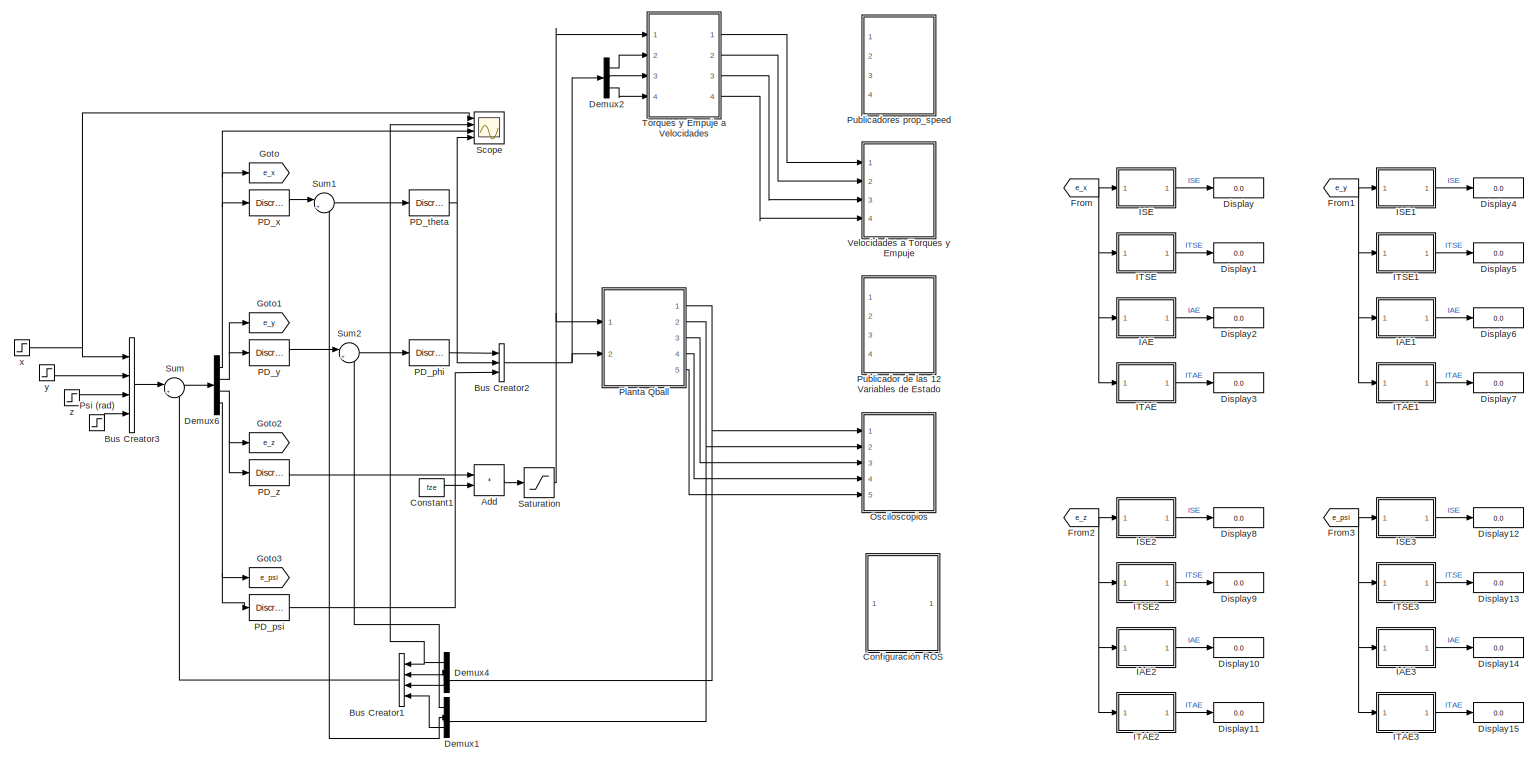
[diagram: root canvas - part 1/1, most of the canvas]
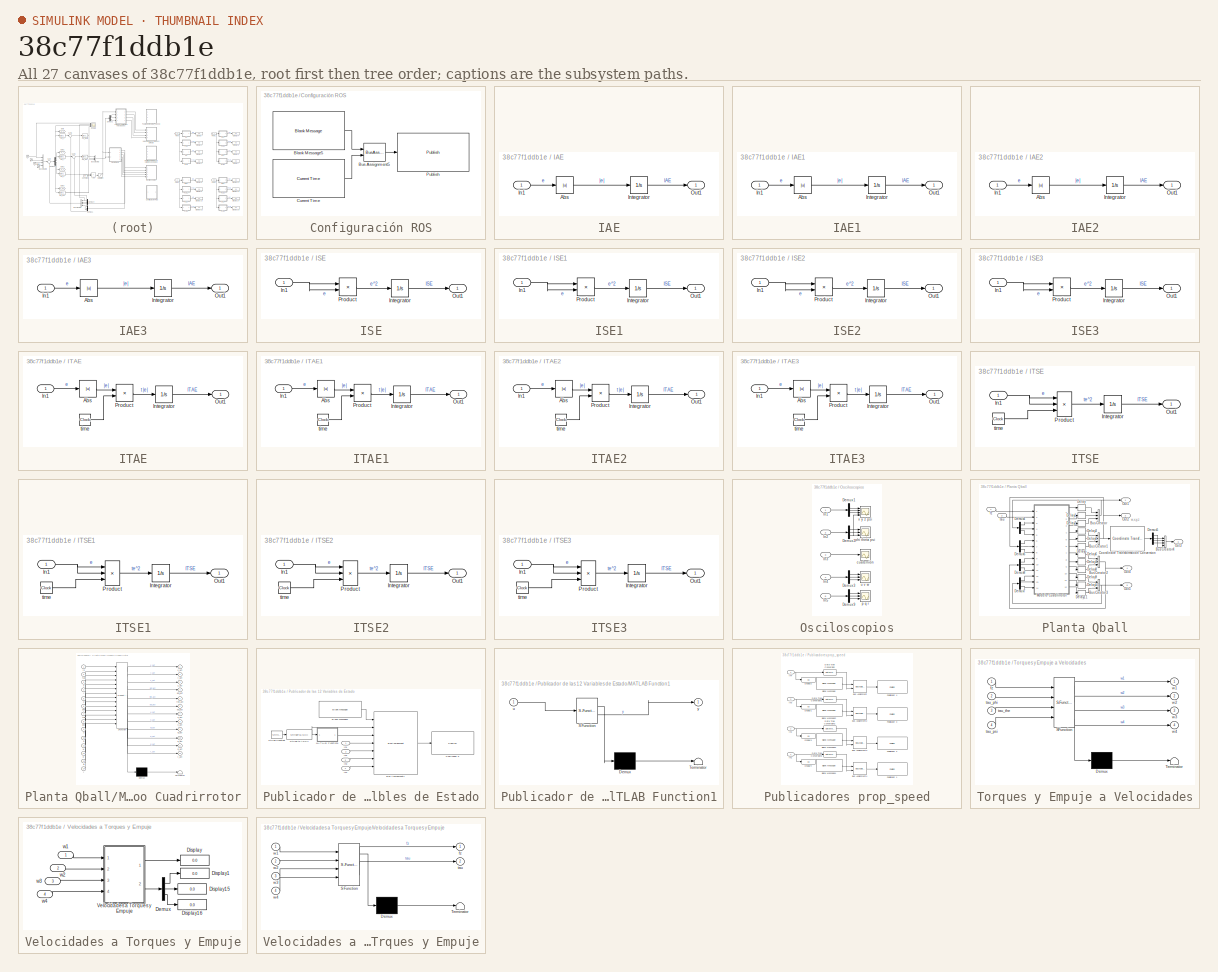
[diagram: thumbnail index - all 27 canvases of the model, root first then tree order]
MODEL slx_38c77f1ddb1e
KIND model
CONFIG AbsTol = auto
CONFIG EnableMultiTasking = off
CONFIG FixedStep = 0.01
CONFIG MaxStep = auto
CONFIG MinStep = auto
CONFIG RelTol = 1e-3
CONFIG SampleTimeConstraint = Unconstrained
CONFIG SolverName = FixedStepAuto
CONFIG StartTime = 0.0
CONFIG StopTime = 40
BLOCK [Sum] Add
  IconShape = rectangular
  Ports = [2, 1]
BLOCK [BusCreator] Bus Creator1
  DisplayOption = bar
  InheritFromInputs = on
  Inputs = 4
  Ports = [4, 1]
BLOCK [BusCreator] Bus Creator2
  DisplayOption = bar
  InheritFromInputs = on
  Inputs = 3
  Ports = [3, 1]
BLOCK [BusCreator] Bus Creator3
  DisplayOption = bar
  InheritFromInputs = on
  Inputs = 4
  Ports = [4, 1]
BLOCK [SubSystem] Configuración ROS
  Commented = on
  Ports = []
  RequestExecContextInheritance = off
BLOCK [Reference] Configuración ROS/Blank Message5  REF=robotlib/Blank Message
  Ports = [0, 1]
  SourceBlock = robotlib/Blank Message
  SourceProductBaseCode = RR
  SourceType = ROS Blank Message
BLOCK [BusAssignment] Configuración ROS/Bus Assignment5
  AssignedSignals = Clock_
  Ports = [2, 1]
BLOCK [Reference] Configuración ROS/Current Time  REF=robotlib/Current Time
  Ports = [0, 1]
  SourceBlock = robotlib/Current Time
  SourceProductBaseCode = RR
  SourceType = ros.slros.internal.block.CurrentTime
BLOCK [Reference] Configuración ROS/Publish  REF=robotlib/Publish
  Ports = [1]
  SourceBlock = robotlib/Publish
  SourceProductBaseCode = RR
  SourceType = ROS Publish
BLOCK [Constant] Constant1
  Value = fze
BLOCK [Demux] Demux1
  Outputs = 3
  Ports = [1, 3]
BLOCK [Demux] Demux2
  Outputs = 3
  Ports = [1, 3]
BLOCK [Demux] Demux4
  Outputs = 3
  Ports = [1, 3]
BLOCK [Demux] Demux6
  Ports = [1, 4]
BLOCK [Display] Display
  Decimation = 1
  Ports = [1]
BLOCK [Display] Display1
  Decimation = 1
  Ports = [1]
BLOCK [Display] Display10
  Decimation = 1
  Ports = [1]
BLOCK [Display] Display11
  Decimation = 1
  Ports = [1]
BLOCK [Display] Display12
  Decimation = 1
  Ports = [1]
BLOCK [Display] Display13
  Decimation = 1
  Ports = [1]
BLOCK [Display] Display14
  Decimation = 1
  Ports = [1]
BLOCK [Display] Display15
  Decimation = 1
  Ports = [1]
BLOCK [Display] Display2
  Decimation = 1
  Ports = [1]
BLOCK [Display] Display3
  Decimation = 1
  Ports = [1]
BLOCK [Display] Display4
  Decimation = 1
  Ports = [1]
BLOCK [Display] Display5
  Decimation = 1
  Ports = [1]
BLOCK [Display] Display6
  Decimation = 1
  Ports = [1]
BLOCK [Display] Display7
  Decimation = 1
  Ports = [1]
BLOCK [Display] Display8
  Decimation = 1
  Ports = [1]
BLOCK [Display] Display9
  Decimation = 1
  Ports = [1]
BLOCK [From] From
  GotoTag = e_x
BLOCK [From] From1
  GotoTag = e_y
BLOCK [From] From2
  GotoTag = e_z
BLOCK [From] From3
  GotoTag = e_psi
BLOCK [Goto] Goto
  GotoTag = e_x
BLOCK [Goto] Goto1
  GotoTag = e_y
BLOCK [Goto] Goto2
  GotoTag = e_z
BLOCK [Goto] Goto3
  GotoTag = e_psi
BLOCK [SubSystem] IAE
  Ports = [1, 1]
  RequestExecContextInheritance = off
BLOCK [Abs] IAE/Abs
  SaturateOnIntegerOverflow = off
BLOCK [Inport] IAE/In1
BLOCK [Integrator] IAE/Integrator
  Ports = [1, 1]
BLOCK [Outport] IAE/Out1
BLOCK [SubSystem] IAE1
  Ports = [1, 1]
  RequestExecContextInheritance = off
BLOCK [Abs] IAE1/Abs
  SaturateOnIntegerOverflow = off
BLOCK [Inport] IAE1/In1
BLOCK [Integrator] IAE1/Integrator
  Ports = [1, 1]
BLOCK [Outport] IAE1/Out1
BLOCK [SubSystem] IAE2
  Ports = [1, 1]
  RequestExecContextInheritance = off
BLOCK [Abs] IAE2/Abs
  SaturateOnIntegerOverflow = off
BLOCK [Inport] IAE2/In1
BLOCK [Integrator] IAE2/Integrator
  Ports = [1, 1]
BLOCK [Outport] IAE2/Out1
BLOCK [SubSystem] IAE3
  Ports = [1, 1]
  RequestExecContextInheritance = off
BLOCK [Abs] IAE3/Abs
  SaturateOnIntegerOverflow = off
BLOCK [Inport] IAE3/In1
BLOCK [Integrator] IAE3/Integrator
  Ports = [1, 1]
BLOCK [Outport] IAE3/Out1
BLOCK [SubSystem] ISE
  Ports = [1, 1]
  RequestExecContextInheritance = off
BLOCK [Inport] ISE/In1
BLOCK [Integrator] ISE/Integrator
  Ports = [1, 1]
BLOCK [Outport] ISE/Out1
BLOCK [Product] ISE/Product
  Ports = [2, 1]
BLOCK [SubSystem] ISE1
  Ports = [1, 1]
  RequestExecContextInheritance = off
BLOCK [Inport] ISE1/In1
BLOCK [Integrator] ISE1/Integrator
  Ports = [1, 1]
BLOCK [Outport] ISE1/Out1
BLOCK [Product] ISE1/Product
  Ports = [2, 1]
BLOCK [SubSystem] ISE2
  Ports = [1, 1]
  RequestExecContextInheritance = off
BLOCK [Inport] ISE2/In1
BLOCK [Integrator] ISE2/Integrator
  Ports = [1, 1]
BLOCK [Outport] ISE2/Out1
BLOCK [Product] ISE2/Product
  Ports = [2, 1]
BLOCK [SubSystem] ISE3
  Ports = [1, 1]
  RequestExecContextInheritance = off
BLOCK [Inport] ISE3/In1
BLOCK [Integrator] ISE3/Integrator
  Ports = [1, 1]
BLOCK [Outport] ISE3/Out1
BLOCK [Product] ISE3/Product
  Ports = [2, 1]
BLOCK [SubSystem] ITAE
  Ports = [1, 1]
  RequestExecContextInheritance = off
BLOCK [Abs] ITAE/Abs
  SaturateOnIntegerOverflow = off
BLOCK [Inport] ITAE/In1
BLOCK [Integrator] ITAE/Integrator
  Ports = [1, 1]
BLOCK [Outport] ITAE/Out1
BLOCK [Product] ITAE/Product
  Ports = [2, 1]
BLOCK [Clock] ITAE/time
BLOCK [SubSystem] ITAE1
  Ports = [1, 1]
  RequestExecContextInheritance = off
BLOCK [Abs] ITAE1/Abs
  SaturateOnIntegerOverflow = off
BLOCK [Inport] ITAE1/In1
BLOCK [Integrator] ITAE1/Integrator
  Ports = [1, 1]
BLOCK [Outport] ITAE1/Out1
BLOCK [Product] ITAE1/Product
  Ports = [2, 1]
BLOCK [Clock] ITAE1/time
BLOCK [SubSystem] ITAE2
  Ports = [1, 1]
  RequestExecContextInheritance = off
BLOCK [Abs] ITAE2/Abs
  SaturateOnIntegerOverflow = off
BLOCK [Inport] ITAE2/In1
BLOCK [Integrator] ITAE2/Integrator
  Ports = [1, 1]
BLOCK [Outport] ITAE2/Out1
BLOCK [Product] ITAE2/Product
  Ports = [2, 1]
BLOCK [Clock] ITAE2/time
BLOCK [SubSystem] ITAE3
  Ports = [1, 1]
  RequestExecContextInheritance = off
BLOCK [Abs] ITAE3/Abs
  SaturateOnIntegerOverflow = off
BLOCK [Inport] ITAE3/In1
BLOCK [Integrator] ITAE3/Integrator
  Ports = [1, 1]
BLOCK [Outport] ITAE3/Out1
BLOCK [Product] ITAE3/Product
  Ports = [2, 1]
BLOCK [Clock] ITAE3/time
BLOCK [SubSystem] ITSE
  Ports = [1, 1]
  RequestExecContextInheritance = off
BLOCK [Inport] ITSE/In1
BLOCK [Integrator] ITSE/Integrator
  Ports = [1, 1]
BLOCK [Outport] ITSE/Out1
BLOCK [Product] ITSE/Product
  Inputs = 3
  Ports = [3, 1]
BLOCK [Clock] ITSE/time
BLOCK [SubSystem] ITSE1
  Ports = [1, 1]
  RequestExecContextInheritance = off
BLOCK [Inport] ITSE1/In1
BLOCK [Integrator] ITSE1/Integrator
  Ports = [1, 1]
BLOCK [Outport] ITSE1/Out1
BLOCK [Product] ITSE1/Product
  Inputs = 3
  Ports = [3, 1]
BLOCK [Clock] ITSE1/time
BLOCK [SubSystem] ITSE2
  Ports = [1, 1]
  RequestExecContextInheritance = off
BLOCK [Inport] ITSE2/In1
BLOCK [Integrator] ITSE2/Integrator
  Ports = [1, 1]
BLOCK [Outport] ITSE2/Out1
BLOCK [Product] ITSE2/Product
  Inputs = 3
  Ports = [3, 1]
BLOCK [Clock] ITSE2/time
BLOCK [SubSystem] ITSE3
  Ports = [1, 1]
  RequestExecContextInheritance = off
BLOCK [Inport] ITSE3/In1
BLOCK [Integrator] ITSE3/Integrator
  Ports = [1, 1]
BLOCK [Outport] ITSE3/Out1
BLOCK [Product] ITSE3/Product
  Inputs = 3
  Ports = [3, 1]
BLOCK [Clock] ITSE3/time
BLOCK [SubSystem] Osciloscopios
  Ports = [5]
  RequestExecContextInheritance = off
BLOCK [Demux] Osciloscopios/Demux1
  Outputs = 3
  Ports = [1, 3]
BLOCK [Demux] Osciloscopios/Demux2
  Outputs = 3
  Ports = [1, 3]
BLOCK [Demux] Osciloscopios/Demux3
  Outputs = 3
  Ports = [1, 3]
BLOCK [Demux] Osciloscopios/Demux9
  Outputs = 3
  Ports = [1, 3]
BLOCK [Inport] Osciloscopios/In1
BLOCK [Inport] Osciloscopios/In2
  Port = 2
BLOCK [Inport] Osciloscopios/In3
  Port = 3
BLOCK [Inport] Osciloscopios/In4
  Port = 4
BLOCK [Inport] Osciloscopios/In5
  Port = 5
BLOCK [Scope] Osciloscopios/cuaternión
  Floating = off
  NumInputPorts = 1
  Ports = [1]
  ScopeSpecificationString = Simulink.scopes.TimeScopeBlockCfg('CurrentConfiguration', extmgr.ConfigurationSet(extmgr.Configuration('Core','General UI',true),extmgr.Configuration('Core','Source UI',true),extmgr.Configuration('Sources','WiredSimulink',true),extmgr.Configuration('Visuals','Time Domain',true,'SerializedDisplays',{struct('MinYLimReal','-0.98505','MaxYLimReal','1.03802','YLabelReal','','MinYLimMag','0.00000','MaxY...<+2075ch>
BLOCK [Scope] Osciloscopios/p q r
  Floating = off
  NumInputPorts = 3
  Ports = [3]
  ScopeSpecificationString = Simulink.scopes.TimeScopeBlockCfg('CurrentConfiguration', extmgr.ConfigurationSet(extmgr.Configuration('Core','General UI',true),extmgr.Configuration('Core','Source UI',true),extmgr.Configuration('Sources','WiredSimulink',true,'DataLoggingVariableName','ScopeData4'),extmgr.Configuration('Visuals','Time Domain',true,'SerializedDisplays',{struct('MinYLimReal','-6.36129','MaxYLimReal','6.36129','YLab...<+2088ch>
BLOCK [Scope] Osciloscopios/phi theta psi
  Floating = off
  NumInputPorts = 3
  Ports = [3]
  ScopeSpecificationString = Simulink.scopes.TimeScopeBlockCfg('CurrentConfiguration', extmgr.ConfigurationSet(extmgr.Configuration('Core','General UI',true),extmgr.Configuration('Core','Source UI',true),extmgr.Configuration('Sources','WiredSimulink',true,'DataLoggingVariableName','ScopeData2'),extmgr.Configuration('Visuals','Time Domain',true,'SerializedDisplays',{struct('MinYLimReal','-0.01428','MaxYLimReal','0.12852','YLab...<+1785ch>
BLOCK [Scope] Osciloscopios/u v w
  Floating = off
  NumInputPorts = 3
  Ports = [3]
  ScopeSpecificationString = Simulink.scopes.TimeScopeBlockCfg('CurrentConfiguration', extmgr.ConfigurationSet(extmgr.Configuration('Core','General UI',true),extmgr.Configuration('Core','Source UI',true),extmgr.Configuration('Sources','WiredSimulink',true,'DataLoggingVariableName','ScopeData3'),extmgr.Configuration('Visuals','Time Domain',true,'SerializedDisplays',{struct('MinYLimReal','-0.24162','MaxYLimReal','0.74583','YLab...<+2087ch>
BLOCK [Scope] Osciloscopios/x y z psi
  Floating = off
  NumInputPorts = 4
  Ports = [4]
  ScopeSpecificationString = Simulink.scopes.TimeScopeBlockCfg('CurrentConfiguration', extmgr.ConfigurationSet(extmgr.Configuration('Core','General UI',true,'FigureColor',[1 1 1]),extmgr.Configuration('Core','Source UI',true),extmgr.Configuration('Sources','WiredSimulink',true,'DataLoggingVariableName','ScopeData1'),extmgr.Configuration('Visuals','Time Domain',true,'TimeAxisLabels','All','SerializedDisplays',{struct('MinYLimR...<+2335ch>
BLOCK [DiscreteTransferFcn] PD_phi
  Denominator = [1 0]
  InputPortMap = u0
  Numerator = 3.8694*[1 -0.9966]
  Ports = [1, 1]
  SampleTime = T
BLOCK [DiscreteTransferFcn] PD_psi
  Denominator = [1 0]
  InputPortMap = u0
  Numerator = -5.1591*[1 -0.9966]
  Ports = [1, 1]
  SampleTime = T
BLOCK [DiscreteTransferFcn] PD_theta
  Denominator = [1 0]
  InputPortMap = u0
  Numerator = -3.8694*[1 -0.9966]
  Ports = [1, 1]
  SampleTime = T
BLOCK [DiscreteTransferFcn] PD_x
  Denominator = [1 0]
  InputPortMap = u0
  Numerator = -13.152*[1 -0.9966]
  Ports = [1, 1]
  SampleTime = T
BLOCK [DiscreteTransferFcn] PD_y
  Denominator = [1 0]
  InputPortMap = u0
  Numerator = 13.152*[1 -0.9966]
  Ports = [1, 1]
  SampleTime = T
BLOCK [DiscreteTransferFcn] PD_z
  Denominator = [1 0]
  InputPortMap = u0
  Numerator = -230.87*[1 -0.9966]
  Ports = [1, 1]
  SampleTime = T
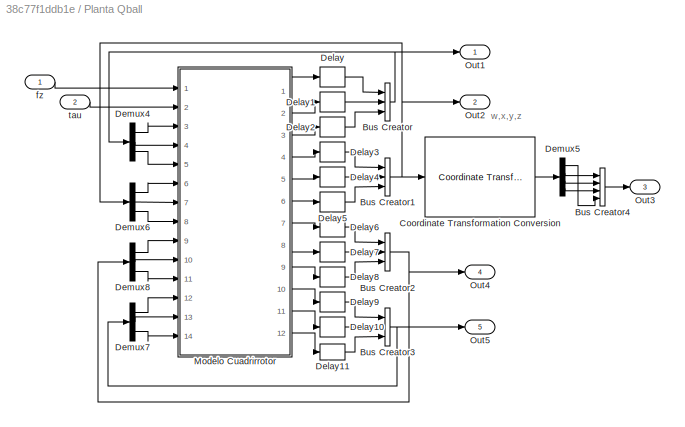
BLOCK [SubSystem] Planta Qball
  Ports = [2, 5]
  RequestExecContextInheritance = off
BLOCK [BusCreator] Planta Qball/Bus Creator
  DisplayOption = bar
  InheritFromInputs = on
  Inputs = 3
  Ports = [3, 1]
BLOCK [BusCreator] Planta Qball/Bus Creator1
  DisplayOption = bar
  InheritFromInputs = on
  Inputs = 3
  Ports = [3, 1]
BLOCK [BusCreator] Planta Qball/Bus Creator2
  DisplayOption = bar
  InheritFromInputs = on
  Inputs = 3
  Ports = [3, 1]
BLOCK [BusCreator] Planta Qball/Bus Creator3
  DisplayOption = bar
  InheritFromInputs = on
  Inputs = 3
  Ports = [3, 1]
BLOCK [BusCreator] Planta Qball/Bus Creator4
  DisplayOption = bar
  InheritFromInputs = on
  Inputs = 4
  Ports = [4, 1]
BLOCK [Reference] Planta Qball/Coordinate Transformation Conversion  REF=robotcorelib/Coordinate Transformation Conversion
  Ports = [1, 1]
  SourceBlock = robotcorelib/Coordinate Transformation Conversion
  SourceProductBaseCode = NV,RO,RR,UV
  SourceType = robotics.slcore.internal.block.CoordinateTransformationConversion
BLOCK [Delay] Planta Qball/Delay
  DelayLength = 1
  InputPortMap = u0
  Ports = [1, 1]
  SampleTime = T
BLOCK [Delay] Planta Qball/Delay1
  DelayLength = 1
  InputPortMap = u0
  Ports = [1, 1]
  SampleTime = T
BLOCK [Delay] Planta Qball/Delay10
  DelayLength = 1
  InputPortMap = u0
  Ports = [1, 1]
  SampleTime = T
BLOCK [Delay] Planta Qball/Delay11
  DelayLength = 1
  InputPortMap = u0
  Ports = [1, 1]
  SampleTime = T
BLOCK [Delay] Planta Qball/Delay2
  DelayLength = 1
  InputPortMap = u0
  Ports = [1, 1]
  SampleTime = T
BLOCK [Delay] Planta Qball/Delay3
  DelayLength = 1
  InputPortMap = u0
  Ports = [1, 1]
  SampleTime = T
BLOCK [Delay] Planta Qball/Delay4
  DelayLength = 1
  InputPortMap = u0
  Ports = [1, 1]
  SampleTime = T
BLOCK [Delay] Planta Qball/Delay5
  DelayLength = 1
  InputPortMap = u0
  Ports = [1, 1]
  SampleTime = T
BLOCK [Delay] Planta Qball/Delay6
  DelayLength = 1
  InputPortMap = u0
  Ports = [1, 1]
  SampleTime = T
BLOCK [Delay] Planta Qball/Delay7
  DelayLength = 1
  InputPortMap = u0
  Ports = [1, 1]
  SampleTime = T
BLOCK [Delay] Planta Qball/Delay8
  DelayLength = 1
  InputPortMap = u0
  Ports = [1, 1]
  SampleTime = T
BLOCK [Delay] Planta Qball/Delay9
  DelayLength = 1
  InputPortMap = u0
  Ports = [1, 1]
  SampleTime = T
BLOCK [Demux] Planta Qball/Demux4
  Outputs = 3
  Ports = [1, 3]
BLOCK [Demux] Planta Qball/Demux5
  Ports = [1, 4]
BLOCK [Demux] Planta Qball/Demux6
  Outputs = 3
  Ports = [1, 3]
BLOCK [Demux] Planta Qball/Demux7
  Outputs = 3
  Ports = [1, 3]
BLOCK [Demux] Planta Qball/Demux8
  Outputs = 3
  Ports = [1, 3]
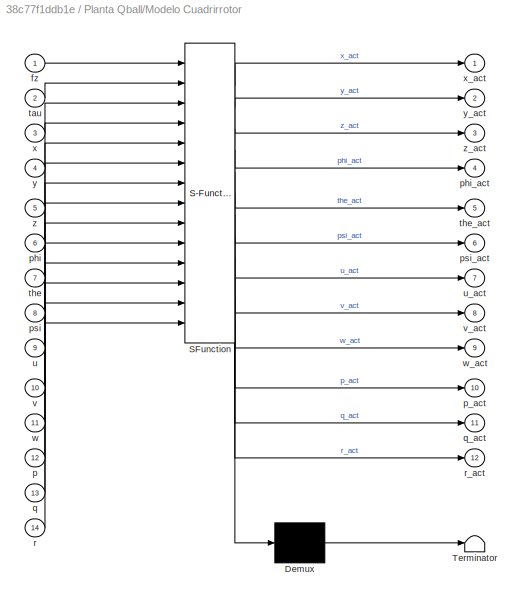
BLOCK [SubSystem] Planta Qball/Modelo Cuadrirrotor
  ErrorFcn = Stateflow.Translate.translate
  PermitHierarchicalResolution = ExplicitOnly
  Ports = [14, 12]
  RequestExecContextInheritance = off
  SFBlockType = MATLAB Function
  TreatAsAtomicUnit = on
BLOCK [Demux] Planta Qball/Modelo Cuadrirrotor/ Demux 
  Outputs = 1
  Ports = [1, 1]
BLOCK [S-Function] Planta Qball/Modelo Cuadrirrotor/ SFunction 
  EnableBusSupport = on
  FunctionName = sf_sfun
  PortCounts = [14 13]
  Ports = [14, 13]
  SFcnIsStateOwnerBlock = off
  SFunctionDeploymentMode = off
  Tag = Stateflow S-Function 3
BLOCK [Terminator] Planta Qball/Modelo Cuadrirrotor/ Terminator 
BLOCK [Inport] Planta Qball/Modelo Cuadrirrotor/fz
BLOCK [Inport] Planta Qball/Modelo Cuadrirrotor/p
  Port = 12
BLOCK [Outport] Planta Qball/Modelo Cuadrirrotor/p_act
  Port = 10
BLOCK [Inport] Planta Qball/Modelo Cuadrirrotor/phi
  Port = 6
BLOCK [Outport] Planta Qball/Modelo Cuadrirrotor/phi_act
  Port = 4
BLOCK [Inport] Planta Qball/Modelo Cuadrirrotor/psi
  Port = 8
BLOCK [Outport] Planta Qball/Modelo Cuadrirrotor/psi_act
  Port = 6
BLOCK [Inport] Planta Qball/Modelo Cuadrirrotor/q
  Port = 13
BLOCK [Outport] Planta Qball/Modelo Cuadrirrotor/q_act
  Port = 11
BLOCK [Inport] Planta Qball/Modelo Cuadrirrotor/r
  Port = 14
BLOCK [Outport] Planta Qball/Modelo Cuadrirrotor/r_act
  Port = 12
BLOCK [Inport] Planta Qball/Modelo Cuadrirrotor/tau
  Port = 2
BLOCK [Inport] Planta Qball/Modelo Cuadrirrotor/the
  Port = 7
BLOCK [Outport] Planta Qball/Modelo Cuadrirrotor/the_act
  Port = 5
BLOCK [Inport] Planta Qball/Modelo Cuadrirrotor/u
  Port = 9
BLOCK [Outport] Planta Qball/Modelo Cuadrirrotor/u_act
  Port = 7
BLOCK [Inport] Planta Qball/Modelo Cuadrirrotor/v
  Port = 10
BLOCK [Outport] Planta Qball/Modelo Cuadrirrotor/v_act
  Port = 8
BLOCK [Inport] Planta Qball/Modelo Cuadrirrotor/w
  Port = 11
BLOCK [Outport] Planta Qball/Modelo Cuadrirrotor/w_act
  Port = 9
BLOCK [Inport] Planta Qball/Modelo Cuadrirrotor/x
  Port = 3
BLOCK [Outport] Planta Qball/Modelo Cuadrirrotor/x_act
BLOCK [Inport] Planta Qball/Modelo Cuadrirrotor/y
  Port = 4
BLOCK [Outport] Planta Qball/Modelo Cuadrirrotor/y_act
  Port = 2
  VectorParamsAs1DForOutWhenUnconnected = off
BLOCK [Inport] Planta Qball/Modelo Cuadrirrotor/z
  Port = 5
BLOCK [Outport] Planta Qball/Modelo Cuadrirrotor/z_act
  Port = 3
BLOCK [Outport] Planta Qball/Out1
  PortDimensions = 3
BLOCK [Outport] Planta Qball/Out2
  Port = 2
  PortDimensions = 3
BLOCK [Outport] Planta Qball/Out3
  Port = 3
  PortDimensions = 4
BLOCK [Outport] Planta Qball/Out4
  Port = 4
  PortDimensions = 3
BLOCK [Outport] Planta Qball/Out5
  Port = 5
  PortDimensions = 3
BLOCK [Inport] Planta Qball/fz
BLOCK [Inport] Planta Qball/tau
  Port = 2
BLOCK [Step] Psi (rad)
  After = 0.1
  SampleTime = 0
  Time = 25
BLOCK [SubSystem] Publicador de las 12 Variables de Estado
  Commented = on
  Ports = [4]
  RequestExecContextInheritance = off
BLOCK [Reference] Publicador de las 12 Variables de Estado/Blank Message1  REF=robotlib/Blank Message
  Ports = [0, 1]
  SourceBlock = robotlib/Blank Message
  SourceProductBaseCode = RR
  SourceType = ROS Blank Message
BLOCK [BusAssignment] Publicador de las 12 Variables de Estado/Bus Assignment1
  AssignedSignals = ModelName,ReferenceFrame,Pose.Position,Pose.Orientation,Twist.Linear,Twist.Angular
  Ports = [7, 1]
BLOCK [Inport] Publicador de las 12 Variables de Estado/In1
BLOCK [Inport] Publicador de las 12 Variables de Estado/In2
  Port = 2
BLOCK [Inport] Publicador de las 12 Variables de Estado/In3
  Port = 3
BLOCK [Inport] Publicador de las 12 Variables de Estado/In4
  Port = 4
BLOCK [SubSystem] Publicador de las 12 Variables de Estado/MATLAB Function1
  ErrorFcn = Stateflow.Translate.translate
  PermitHierarchicalResolution = ExplicitOnly
  Ports = [1, 1]
  RequestExecContextInheritance = off
  SFBlockType = MATLAB Function
  TreatAsAtomicUnit = on
BLOCK [Demux] Publicador de las 12 Variables de Estado/MATLAB Function1/ Demux 
  Outputs = 1
  Ports = [1, 1]
BLOCK [S-Function] Publicador de las 12 Variables de Estado/MATLAB Function1/ SFunction 
  EnableBusSupport = on
  FunctionName = sf_sfun
  PortCounts = [1 2]
  Ports = [1, 2]
  SFcnIsStateOwnerBlock = off
  SFunctionDeploymentMode = off
  Tag = Stateflow S-Function 5
BLOCK [Terminator] Publicador de las 12 Variables de Estado/MATLAB Function1/ Terminator 
BLOCK [Inport] Publicador de las 12 Variables de Estado/MATLAB Function1/u
BLOCK [Outport] Publicador de las 12 Variables de Estado/MATLAB Function1/y
BLOCK [Reference] Publicador de las 12 Variables de Estado/Publicador 5  REF=robotlib/Publish
  Ports = [1]
  SourceBlock = robotlib/Publish
  SourceProductBaseCode = RR
  SourceType = ROS Publish
BLOCK [StringConstant] Publicador de las 12 Variables de Estado/String Constant
  String = "qball"
BLOCK [StringToASCII] Publicador de las 12 Variables de Estado/String to ASCII
  OutputVectorSize = 128
BLOCK [SubSystem] Publicadores prop_speed
  Commented = on
  Ports = [4]
  RequestExecContextInheritance = off
BLOCK [Reference] Publicadores prop_speed/Blank Message  REF=robotlib/Blank Message
  Ports = [0, 1]
  SourceBlock = robotlib/Blank Message
  SourceProductBaseCode = RR
  SourceType = ROS Blank Message
BLOCK [Reference] Publicadores prop_speed/Blank Message2  REF=robotlib/Blank Message
  Ports = [0, 1]
  SourceBlock = robotlib/Blank Message
  SourceProductBaseCode = RR
  SourceType = ROS Blank Message
BLOCK [Reference] Publicadores prop_speed/Blank Message3  REF=robotlib/Blank Message
  Ports = [0, 1]
  SourceBlock = robotlib/Blank Message
  SourceProductBaseCode = RR
  SourceType = ROS Blank Message
BLOCK [Reference] Publicadores prop_speed/Blank Message4  REF=robotlib/Blank Message
  Ports = [0, 1]
  SourceBlock = robotlib/Blank Message
  SourceProductBaseCode = RR
  SourceType = ROS Blank Message
BLOCK [BusAssignment] Publicadores prop_speed/Bus Assignment
  AssignedSignals = Data
  Ports = [2, 1]
BLOCK [BusAssignment] Publicadores prop_speed/Bus Assignment2
  AssignedSignals = Data
  Ports = [2, 1]
BLOCK [BusAssignment] Publicadores prop_speed/Bus Assignment3
  AssignedSignals = Data
  Ports = [2, 1]
BLOCK [BusAssignment] Publicadores prop_speed/Bus Assignment4
  AssignedSignals = Data
  Ports = [2, 1]
BLOCK [DataTypeConversion] Publicadores prop_speed/Data Type Conversion
  OutDataTypeStr = single
  RndMeth = Floor
  SaturateOnIntegerOverflow = off
BLOCK [DataTypeConversion] Publicadores prop_speed/Data Type Conversion1
  NameLocation = top
  OutDataTypeStr = single
  RndMeth = Floor
  SaturateOnIntegerOverflow = off
BLOCK [DataTypeConversion] Publicadores prop_speed/Data Type Conversion2
  OutDataTypeStr = single
  RndMeth = Floor
  SaturateOnIntegerOverflow = off
BLOCK [DataTypeConversion] Publicadores prop_speed/Data Type Conversion3
  OutDataTypeStr = single
  RndMeth = Floor
  SaturateOnIntegerOverflow = off
BLOCK [Display] Publicadores prop_speed/Display1
  Decimation = 1
  Ports = [1]
BLOCK [Display] Publicadores prop_speed/Display2
  Decimation = 1
  Ports = [1]
BLOCK [Display] Publicadores prop_speed/Display3
  Decimation = 1
  Ports = [1]
BLOCK [Display] Publicadores prop_speed/Display4
  Decimation = 1
  Ports = [1]
BLOCK [Inport] Publicadores prop_speed/In1
BLOCK [Inport] Publicadores prop_speed/In2
  Port = 2
BLOCK [Inport] Publicadores prop_speed/In3
  Port = 3
BLOCK [Inport] Publicadores prop_speed/In4
  Port = 4
BLOCK [Reference] Publicadores prop_speed/Publicador 1  REF=robotlib/Publish
  Ports = [1]
  SourceBlock = robotlib/Publish
  SourceProductBaseCode = RR
  SourceType = ROS Publish
BLOCK [Reference] Publicadores prop_speed/Publicador 2  REF=robotlib/Publish
  Ports = [1]
  SourceBlock = robotlib/Publish
  SourceProductBaseCode = RR
  SourceType = ROS Publish
BLOCK [Reference] Publicadores prop_speed/Publicador 3  REF=robotlib/Publish
  Ports = [1]
  SourceBlock = robotlib/Publish
  SourceProductBaseCode = RR
  SourceType = ROS Publish
BLOCK [Reference] Publicadores prop_speed/Publicador 4  REF=robotlib/Publish
  Ports = [1]
  SourceBlock = robotlib/Publish
  SourceProductBaseCode = RR
  SourceType = ROS Publish
BLOCK [Saturate] Saturation
  LowerLimit = -fz_max
  UpperLimit = fz_max
BLOCK [Scope] Scope
  Floating = off
  NumInputPorts = 4
  Ports = [4]
  ScopeSpecificationString = Simulink.scopes.TimeScopeBlockCfg('CurrentConfiguration', extmgr.ConfigurationSet(extmgr.Configuration('Core','General UI',true),extmgr.Configuration('Core','Source UI',true),extmgr.Configuration('Sources','WiredSimulink',true,'DataLoggingVariableName','ScopeData1'),extmgr.Configuration('Visuals','Time Domain',true,'SerializedDisplays',{struct('MinYLimReal','-15.85466','MaxYLimReal','20.19237','YL...<+1607ch>
BLOCK [Sum] Sum
  Inputs = |+-
  Ports = [2, 1]
BLOCK [Sum] Sum1
  Inputs = |+-
  Ports = [2, 1]
BLOCK [Sum] Sum2
  Inputs = |+-
  Ports = [2, 1]
BLOCK [SubSystem] Torques y Empuje a Velocidades
  ErrorFcn = Stateflow.Translate.translate
  PermitHierarchicalResolution = ExplicitOnly
  Ports = [4, 4]
  RequestExecContextInheritance = off
  SFBlockType = MATLAB Function
  TreatAsAtomicUnit = on
BLOCK [Demux] Torques y Empuje a Velocidades/ Demux 
  Outputs = 1
  Ports = [1, 1]
BLOCK [S-Function] Torques y Empuje a Velocidades/ SFunction 
  EnableBusSupport = on
  FunctionName = sf_sfun
  PortCounts = [4 5]
  Ports = [4, 5]
  SFcnIsStateOwnerBlock = off
  SFunctionDeploymentMode = off
  Tag = Stateflow S-Function 1
BLOCK [Terminator] Torques y Empuje a Velocidades/ Terminator 
BLOCK [Inport] Torques y Empuje a Velocidades/fz
BLOCK [Inport] Torques y Empuje a Velocidades/tau_phi
  Port = 2
BLOCK [Inport] Torques y Empuje a Velocidades/tau_psi
  Port = 4
BLOCK [Inport] Torques y Empuje a Velocidades/tau_the
  Port = 3
BLOCK [Outport] Torques y Empuje a Velocidades/w1
BLOCK [Outport] Torques y Empuje a Velocidades/w2
  Port = 2
BLOCK [Outport] Torques y Empuje a Velocidades/w3
  Port = 3
BLOCK [Outport] Torques y Empuje a Velocidades/w4
  Port = 4
BLOCK [SubSystem] Velocidades a Torques y Empuje
  Ports = [4]
  RequestExecContextInheritance = off
BLOCK [Demux] Velocidades a Torques y Empuje/Demux
  Outputs = 3
  Ports = [1, 3]
BLOCK [Display] Velocidades a Torques y Empuje/Display
  Decimation = 1
  Ports = [1]
BLOCK [Display] Velocidades a Torques y Empuje/Display1
  Decimation = 1
  Ports = [1]
BLOCK [Display] Velocidades a Torques y Empuje/Display15
  Decimation = 1
  Ports = [1]
BLOCK [Display] Velocidades a Torques y Empuje/Display16
  Decimation = 1
  Ports = [1]
BLOCK [SubSystem] Velocidades a Torques y Empuje/Velocidades a Torques y Empuje
  ErrorFcn = Stateflow.Translate.translate
  PermitHierarchicalResolution = ExplicitOnly
  Ports = [4, 2]
  RequestExecContextInheritance = off
  SFBlockType = MATLAB Function
  TreatAsAtomicUnit = on
BLOCK [Demux] Velocidades a Torques y Empuje/Velocidades a Torques y Empuje/ Demux 
  Outputs = 1
  Ports = [1, 1]
BLOCK [S-Function] Velocidades a Torques y Empuje/Velocidades a Torques y Empuje/ SFunction 
  EnableBusSupport = on
  FunctionName = sf_sfun
  PortCounts = [4 3]
  Ports = [4, 3]
  SFcnIsStateOwnerBlock = off
  SFunctionDeploymentMode = off
  Tag = Stateflow S-Function 2
BLOCK [Terminator] Velocidades a Torques y Empuje/Velocidades a Torques y Empuje/ Terminator 
BLOCK [Outport] Velocidades a Torques y Empuje/Velocidades a Torques y Empuje/fz
BLOCK [Outport] Velocidades a Torques y Empuje/Velocidades a Torques y Empuje/tau
  Port = 2
BLOCK [Inport] Velocidades a Torques y Empuje/Velocidades a Torques y Empuje/w1
BLOCK [Inport] Velocidades a Torques y Empuje/Velocidades a Torques y Empuje/w2
  Port = 2
BLOCK [Inport] Velocidades a Torques y Empuje/Velocidades a Torques y Empuje/w3
  Port = 3
BLOCK [Inport] Velocidades a Torques y Empuje/Velocidades a Torques y Empuje/w4
  Port = 4
BLOCK [Inport] Velocidades a Torques y Empuje/w1
BLOCK [Inport] Velocidades a Torques y Empuje/w2
  Port = 2
BLOCK [Inport] Velocidades a Torques y Empuje/w3
  Port = 3
BLOCK [Inport] Velocidades a Torques y Empuje/w4
  Port = 4
BLOCK [Step] x
  After = 0.3
  SampleTime = 0
  Time = 5
BLOCK [Step] y
  After = 0.3
  SampleTime = 0
  Time = 10
BLOCK [Step] z
  After = 0.5
  SampleTime = 0
  Time = 0
ANNOTATION Planta Qball: w,x,y,z
LINE Add:1 -> Saturation:1
LINE Bus Creator1:1 -> Sum:2
NET Bus Creator2:1 -> Demux2:1, Planta Qball:2
LINE Bus Creator3:1 -> Sum:1
LINE Configuración ROS/Blank Message5:1 -> Configuración ROS/Bus Assignment5:1
LINE Configuración ROS/Bus Assignment5:1 -> Configuración ROS/Publish:1
LINE Configuración ROS/Current Time:1 -> Configuración ROS/Bus Assignment5:2
LINE Constant1:1 -> Add:2
LINE Demux1:1 -> Sum2:2
LINE Demux1:2 -> Sum1:2
LINE Demux1:3 -> Bus Creator1:4
LINE Demux2:1 -> Torques y Empuje a Velocidades:2
LINE Demux2:2 -> Torques y Empuje a Velocidades:3
LINE Demux2:3 -> Torques y Empuje a Velocidades:4
NET Demux4:1 -> Bus Creator1:1, Scope:2
LINE Demux4:2 -> Bus Creator1:2
LINE Demux4:3 -> Bus Creator1:3
NET Demux6:1 -> Goto:1, PD_x:1, Scope:3
NET Demux6:2 -> Goto1:1, PD_y:1
NET Demux6:3 -> Goto2:1, PD_z:1
NET Demux6:4 -> Goto3:1, PD_psi:1
NET From1:1 -> IAE1:1, ISE1:1, ITAE1:1, ITSE1:1
NET From2:1 -> IAE2:1, ISE2:1, ITAE2:1, ITSE2:1
NET From3:1 -> IAE3:1, ISE3:1, ITAE3:1, ITSE3:1
NET From:1 -> IAE:1, ISE:1, ITAE:1, ITSE:1
LINE IAE/Abs:1 -> IAE/Integrator:1
LINE IAE/In1:1 -> IAE/Abs:1
LINE IAE/Integrator:1 -> IAE/Out1:1
LINE IAE1/Abs:1 -> IAE1/Integrator:1
LINE IAE1/In1:1 -> IAE1/Abs:1
LINE IAE1/Integrator:1 -> IAE1/Out1:1
LINE IAE1:1 -> Display6:1
LINE IAE2/Abs:1 -> IAE2/Integrator:1
LINE IAE2/In1:1 -> IAE2/Abs:1
LINE IAE2/Integrator:1 -> IAE2/Out1:1
LINE IAE2:1 -> Display10:1
LINE IAE3/Abs:1 -> IAE3/Integrator:1
LINE IAE3/In1:1 -> IAE3/Abs:1
LINE IAE3/Integrator:1 -> IAE3/Out1:1
LINE IAE3:1 -> Display14:1
LINE IAE:1 -> Display2:1
NET ISE/In1:1 -> ISE/Product:1, ISE/Product:2
LINE ISE/Integrator:1 -> ISE/Out1:1
LINE ISE/Product:1 -> ISE/Integrator:1
NET ISE1/In1:1 -> ISE1/Product:1, ISE1/Product:2
LINE ISE1/Integrator:1 -> ISE1/Out1:1
LINE ISE1/Product:1 -> ISE1/Integrator:1
LINE ISE1:1 -> Display4:1
NET ISE2/In1:1 -> ISE2/Product:1, ISE2/Product:2
LINE ISE2/Integrator:1 -> ISE2/Out1:1
LINE ISE2/Product:1 -> ISE2/Integrator:1
LINE ISE2:1 -> Display8:1
NET ISE3/In1:1 -> ISE3/Product:1, ISE3/Product:2
LINE ISE3/Integrator:1 -> ISE3/Out1:1
LINE ISE3/Product:1 -> ISE3/Integrator:1
LINE ISE3:1 -> Display12:1
LINE ISE:1 -> Display:1
LINE ITAE/Abs:1 -> ITAE/Product:1
LINE ITAE/In1:1 -> ITAE/Abs:1
LINE ITAE/Integrator:1 -> ITAE/Out1:1
LINE ITAE/Product:1 -> ITAE/Integrator:1
LINE ITAE/time:1 -> ITAE/Product:2
LINE ITAE1/Abs:1 -> ITAE1/Product:1
LINE ITAE1/In1:1 -> ITAE1/Abs:1
LINE ITAE1/Integrator:1 -> ITAE1/Out1:1
LINE ITAE1/Product:1 -> ITAE1/Integrator:1
LINE ITAE1/time:1 -> ITAE1/Product:2
LINE ITAE1:1 -> Display7:1
LINE ITAE2/Abs:1 -> ITAE2/Product:1
LINE ITAE2/In1:1 -> ITAE2/Abs:1
LINE ITAE2/Integrator:1 -> ITAE2/Out1:1
LINE ITAE2/Product:1 -> ITAE2/Integrator:1
LINE ITAE2/time:1 -> ITAE2/Product:2
LINE ITAE2:1 -> Display11:1
LINE ITAE3/Abs:1 -> ITAE3/Product:1
LINE ITAE3/In1:1 -> ITAE3/Abs:1
LINE ITAE3/Integrator:1 -> ITAE3/Out1:1
LINE ITAE3/Product:1 -> ITAE3/Integrator:1
LINE ITAE3/time:1 -> ITAE3/Product:2
LINE ITAE3:1 -> Display15:1
LINE ITAE:1 -> Display3:1
NET ITSE/In1:1 -> ITSE/Product:1, ITSE/Product:2
LINE ITSE/Integrator:1 -> ITSE/Out1:1
LINE ITSE/Product:1 -> ITSE/Integrator:1
LINE ITSE/time:1 -> ITSE/Product:3
NET ITSE1/In1:1 -> ITSE1/Product:1, ITSE1/Product:2
LINE ITSE1/Integrator:1 -> ITSE1/Out1:1
LINE ITSE1/Product:1 -> ITSE1/Integrator:1
LINE ITSE1/time:1 -> ITSE1/Product:3
LINE ITSE1:1 -> Display5:1
NET ITSE2/In1:1 -> ITSE2/Product:1, ITSE2/Product:2
LINE ITSE2/Integrator:1 -> ITSE2/Out1:1
LINE ITSE2/Product:1 -> ITSE2/Integrator:1
LINE ITSE2/time:1 -> ITSE2/Product:3
LINE ITSE2:1 -> Display9:1
NET ITSE3/In1:1 -> ITSE3/Product:1, ITSE3/Product:2
LINE ITSE3/Integrator:1 -> ITSE3/Out1:1
LINE ITSE3/Product:1 -> ITSE3/Integrator:1
LINE ITSE3/time:1 -> ITSE3/Product:3
LINE ITSE3:1 -> Display13:1
LINE ITSE:1 -> Display1:1
LINE Osciloscopios/Demux1:1 -> Osciloscopios/x y z psi:1
LINE Osciloscopios/Demux1:2 -> Osciloscopios/x y z psi:2
LINE Osciloscopios/Demux1:3 -> Osciloscopios/x y z psi:3
LINE Osciloscopios/Demux2:1 -> Osciloscopios/phi theta psi:1
LINE Osciloscopios/Demux2:2 -> Osciloscopios/phi theta psi:2
NET Osciloscopios/Demux2:3 -> Osciloscopios/phi theta psi:3, Osciloscopios/x y z psi:4
LINE Osciloscopios/Demux3:1 -> Osciloscopios/u v w:1
LINE Osciloscopios/Demux3:2 -> Osciloscopios/u v w:2
LINE Osciloscopios/Demux3:3 -> Osciloscopios/u v w:3
LINE Osciloscopios/Demux9:1 -> Osciloscopios/p q r:1
LINE Osciloscopios/Demux9:2 -> Osciloscopios/p q r:2
LINE Osciloscopios/Demux9:3 -> Osciloscopios/p q r:3
LINE Osciloscopios/In1:1 -> Osciloscopios/Demux1:1
LINE Osciloscopios/In2:1 -> Osciloscopios/Demux2:1
LINE Osciloscopios/In3:1 -> Osciloscopios/cuaternión:1
LINE Osciloscopios/In4:1 -> Osciloscopios/Demux3:1
LINE Osciloscopios/In5:1 -> Osciloscopios/Demux9:1
LINE PD_phi:1 -> Bus Creator2:1
LINE PD_psi:1 -> Bus Creator2:3
NET PD_theta:1 -> Bus Creator2:2, Scope:4
LINE PD_x:1 -> Sum1:1
LINE PD_y:1 -> Sum2:1
LINE PD_z:1 -> Add:1
NET Planta Qball/Bus Creator1:1 -> Planta Qball/Coordinate Transformation Conversion:1, Planta Qball/Demux6:1, Planta Qball/Out2:1
NET Planta Qball/Bus Creator2:1 -> Planta Qball/Demux8:1, Planta Qball/Out4:1
NET Planta Qball/Bus Creator3:1 -> Planta Qball/Demux7:1, Planta Qball/Out5:1
LINE Planta Qball/Bus Creator4:1 -> Planta Qball/Out3:1
NET Planta Qball/Bus Creator:1 -> Planta Qball/Demux4:1, Planta Qball/Out1:1
LINE Planta Qball/Coordinate Transformation Conversion:1 -> Planta Qball/Demux5:1
LINE Planta Qball/Delay10:1 -> Planta Qball/Bus Creator3:2
LINE Planta Qball/Delay11:1 -> Planta Qball/Bus Creator3:3
LINE Planta Qball/Delay1:1 -> Planta Qball/Bus Creator:2
LINE Planta Qball/Delay2:1 -> Planta Qball/Bus Creator:3
LINE Planta Qball/Delay3:1 -> Planta Qball/Bus Creator1:1
LINE Planta Qball/Delay4:1 -> Planta Qball/Bus Creator1:2
LINE Planta Qball/Delay5:1 -> Planta Qball/Bus Creator1:3
LINE Planta Qball/Delay6:1 -> Planta Qball/Bus Creator2:1
LINE Planta Qball/Delay7:1 -> Planta Qball/Bus Creator2:2
LINE Planta Qball/Delay8:1 -> Planta Qball/Bus Creator2:3
LINE Planta Qball/Delay9:1 -> Planta Qball/Bus Creator3:1
LINE Planta Qball/Delay:1 -> Planta Qball/Bus Creator:1
LINE Planta Qball/Demux4:1 -> Planta Qball/Modelo Cuadrirrotor:3
LINE Planta Qball/Demux4:2 -> Planta Qball/Modelo Cuadrirrotor:4
LINE Planta Qball/Demux4:3 -> Planta Qball/Modelo Cuadrirrotor:5
LINE Planta Qball/Demux5:1 -> Planta Qball/Bus Creator4:4
LINE Planta Qball/Demux5:2 -> Planta Qball/Bus Creator4:1
LINE Planta Qball/Demux5:3 -> Planta Qball/Bus Creator4:2
LINE Planta Qball/Demux5:4 -> Planta Qball/Bus Creator4:3
LINE Planta Qball/Demux6:1 -> Planta Qball/Modelo Cuadrirrotor:6
LINE Planta Qball/Demux6:2 -> Planta Qball/Modelo Cuadrirrotor:7
LINE Planta Qball/Demux6:3 -> Planta Qball/Modelo Cuadrirrotor:8
LINE Planta Qball/Demux7:1 -> Planta Qball/Modelo Cuadrirrotor:12
LINE Planta Qball/Demux7:2 -> Planta Qball/Modelo Cuadrirrotor:13
LINE Planta Qball/Demux7:3 -> Planta Qball/Modelo Cuadrirrotor:14
LINE Planta Qball/Demux8:1 -> Planta Qball/Modelo Cuadrirrotor:9
LINE Planta Qball/Demux8:2 -> Planta Qball/Modelo Cuadrirrotor:10
LINE Planta Qball/Demux8:3 -> Planta Qball/Modelo Cuadrirrotor:11
LINE Planta Qball/Modelo Cuadrirrotor:1 -> Planta Qball/Delay:1
LINE Planta Qball/Modelo Cuadrirrotor:10 -> Planta Qball/Delay9:1
LINE Planta Qball/Modelo Cuadrirrotor:11 -> Planta Qball/Delay10:1
LINE Planta Qball/Modelo Cuadrirrotor:12 -> Planta Qball/Delay11:1
LINE Planta Qball/Modelo Cuadrirrotor:2 -> Planta Qball/Delay1:1
LINE Planta Qball/Modelo Cuadrirrotor:3 -> Planta Qball/Delay2:1
LINE Planta Qball/Modelo Cuadrirrotor:4 -> Planta Qball/Delay3:1
LINE Planta Qball/Modelo Cuadrirrotor:5 -> Planta Qball/Delay4:1
LINE Planta Qball/Modelo Cuadrirrotor:6 -> Planta Qball/Delay5:1
LINE Planta Qball/Modelo Cuadrirrotor:7 -> Planta Qball/Delay6:1
LINE Planta Qball/Modelo Cuadrirrotor:8 -> Planta Qball/Delay7:1
LINE Planta Qball/Modelo Cuadrirrotor:9 -> Planta Qball/Delay8:1
LINE Planta Qball/fz:1 -> Planta Qball/Modelo Cuadrirrotor:1
LINE Planta Qball/tau:1 -> Planta Qball/Modelo Cuadrirrotor:2
NET Planta Qball:1 -> Demux4:1, Osciloscopios:1
NET Planta Qball:2 -> Demux1:1, Osciloscopios:2
LINE Planta Qball:3 -> Osciloscopios:3
LINE Planta Qball:4 -> Osciloscopios:4
LINE Planta Qball:5 -> Osciloscopios:5
LINE Psi (rad):1 -> Bus Creator3:4
LINE Publicador de las 12 Variables de Estado/Blank Message1:1 -> Publicador de las 12 Variables de Estado/Bus Assignment1:1
LINE Publicador de las 12 Variables de Estado/Bus Assignment1:1 -> Publicador de las 12 Variables de Estado/Publicador 5:1
LINE Publicador de las 12 Variables de Estado/In1:1 -> Publicador de las 12 Variables de Estado/Bus Assignment1:4
LINE Publicador de las 12 Variables de Estado/In2:1 -> Publicador de las 12 Variables de Estado/Bus Assignment1:5
LINE Publicador de las 12 Variables de Estado/In3:1 -> Publicador de las 12 Variables de Estado/Bus Assignment1:6
LINE Publicador de las 12 Variables de Estado/In4:1 -> Publicador de las 12 Variables de Estado/Bus Assignment1:7
LINE Publicador de las 12 Variables de Estado/MATLAB Function1:1 -> Publicador de las 12 Variables de Estado/Bus Assignment1:3
LINE Publicador de las 12 Variables de Estado/String Constant:1 -> Publicador de las 12 Variables de Estado/String to ASCII:1
NET Publicador de las 12 Variables de Estado/String to ASCII:1 -> Publicador de las 12 Variables de Estado/Bus Assignment1:2, Publicador de las 12 Variables de Estado/MATLAB Function1:1
LINE Publicadores prop_speed/Blank Message2:1 -> Publicadores prop_speed/Bus Assignment2:1
LINE Publicadores prop_speed/Blank Message3:1 -> Publicadores prop_speed/Bus Assignment3:1
LINE Publicadores prop_speed/Blank Message4:1 -> Publicadores prop_speed/Bus Assignment4:1
LINE Publicadores prop_speed/Blank Message:1 -> Publicadores prop_speed/Bus Assignment:1
LINE Publicadores prop_speed/Bus Assignment2:1 -> Publicadores prop_speed/Publicador 3:1
LINE Publicadores prop_speed/Bus Assignment3:1 -> Publicadores prop_speed/Publicador 2:1
LINE Publicadores prop_speed/Bus Assignment4:1 -> Publicadores prop_speed/Publicador 1:1
LINE Publicadores prop_speed/Bus Assignment:1 -> Publicadores prop_speed/Publicador 4:1
LINE Publicadores prop_speed/Data Type Conversion1:1 -> Publicadores prop_speed/Bus Assignment2:2
LINE Publicadores prop_speed/Data Type Conversion2:1 -> Publicadores prop_speed/Bus Assignment3:2
LINE Publicadores prop_speed/Data Type Conversion3:1 -> Publicadores prop_speed/Bus Assignment4:2
LINE Publicadores prop_speed/Data Type Conversion:1 -> Publicadores prop_speed/Bus Assignment:2
NET Publicadores prop_speed/In1:1 -> Publicadores prop_speed/Data Type Conversion3:1, Publicadores prop_speed/Display4:1
NET Publicadores prop_speed/In2:1 -> Publicadores prop_speed/Data Type Conversion2:1, Publicadores prop_speed/Display3:1
NET Publicadores prop_speed/In3:1 -> Publicadores prop_speed/Data Type Conversion1:1, Publicadores prop_speed/Display1:1
NET Publicadores prop_speed/In4:1 -> Publicadores prop_speed/Data Type Conversion:1, Publicadores prop_speed/Display2:1
NET Saturation:1 -> Planta Qball:1, Torques y Empuje a Velocidades:1
LINE Sum1:1 -> PD_theta:1
LINE Sum2:1 -> PD_phi:1
LINE Sum:1 -> Demux6:1
LINE Torques y Empuje a Velocidades:1 -> Velocidades a Torques y Empuje:1
LINE Torques y Empuje a Velocidades:2 -> Velocidades a Torques y Empuje:2
LINE Torques y Empuje a Velocidades:3 -> Velocidades a Torques y Empuje:3
LINE Torques y Empuje a Velocidades:4 -> Velocidades a Torques y Empuje:4
LINE Velocidades a Torques y Empuje/Demux:1 -> Velocidades a Torques y Empuje/Display1:1
LINE Velocidades a Torques y Empuje/Demux:2 -> Velocidades a Torques y Empuje/Display15:1
LINE Velocidades a Torques y Empuje/Demux:3 -> Velocidades a Torques y Empuje/Display16:1
LINE Velocidades a Torques y Empuje/Velocidades a Torques y Empuje:1 -> Velocidades a Torques y Empuje/Display:1
LINE Velocidades a Torques y Empuje/Velocidades a Torques y Empuje:2 -> Velocidades a Torques y Empuje/Demux:1
LINE Velocidades a Torques y Empuje/w1:1 -> Velocidades a Torques y Empuje/Velocidades a Torques y Empuje:1
LINE Velocidades a Torques y Empuje/w2:1 -> Velocidades a Torques y Empuje/Velocidades a Torques y Empuje:2
LINE Velocidades a Torques y Empuje/w3:1 -> Velocidades a Torques y Empuje/Velocidades a Torques y Empuje:3
LINE Velocidades a Torques y Empuje/w4:1 -> Velocidades a Torques y Empuje/Velocidades a Torques y Empuje:4
NET x:1 -> Bus Creator3:1, Scope:1
LINE y:1 -> Bus Creator3:2
LINE z:1 -> Bus Creator3:3
note: NET lines group one-source signal fan-out (src -> all destinations, sorted); 1:1 wires keep LINE
CHART Publicador de las 12 Variables de Estado/MATLAB Function1 states=1 transitions=1
  STATE_LABEL 'eML_blk_kernel()'
  STATE_LABEL "SCRIPT:\nfunction y = fcn(u)\n\ny = u';\n"
CHART Torques y Empuje a Velocidades states=1 transitions=1
  STATE_LABEL 'eML_blk_kernel()'
  STATE_LABEL 'SCRIPT:\nfunction [w1,w2,w3,w4] = H(fz,tau_phi,tau_the,tau_psi)\n%         Salidas          Entradas\n\n% Constantes \nl = 0.2;    % m\nkf = 0.007; % Nm/A\nkm = 0.8;   % V/kRPM\n\n% Matriz H\nH = [kf     kf      kf      kf;\n     0      l*kf    0       -l*kf;\n     -l*kf  0       l*kf    0;  \n     km     -km     km      -km];\n \n% Inversa de H\nH_inversa = inv(H);\n\n% Vector de entrada\nTorques = [fz;\n           ...<+439ch>'
CHART Velocidades a Torques y Empuje/Velocidades a Torques y Empuje states=1 transitions=1
  STATE_LABEL 'eML_blk_kernel()'
  STATE_LABEL 'SCRIPT:\n\nfunction [fz,tau] = H(w1,w2,w3,w4)\n%         Salidas     Entradas\n\n% wi rad/s\n\n% Constantes\nl = 0.2;    % m\nkf = 0.007; % Nm/A\nkm = 0.8;   % V/kRPM\n\n% Matriz H\nH = [kf     kf      kf      kf;\n     0      l*kf    0       -l*kf;\n     -l*kf  0       l*kf    0;\n     km     -km     km      -km];\n\nWi2 = [w1^2;\n       w2^2;\n       w3^2;\n       w4^2];\n \nTorques = H*Wi2;\n\nfz = Torques(1);\ntau_phi ...<+90ch>'
CHART Planta Qball/Modelo Cuadrirrotor states=1 transitions=1
  STATE_LABEL 'eML_blk_kernel()'
  STATE_LABEL 'SCRIPT:\nfunction [x_act,y_act,z_act,phi_act,the_act,psi_act,u_act,v_act,w_act,p_act,q_act,r_act] ...\n    = Cuadrirrotor(fz,tau,x,y,z,phi,the,psi,u,v,w,p,q,r)\n%                  Salidas            Entradas \n                                  \n%Constantes\nm = 1.79;       g = 9.77412;\nIxx = 0.03;     Iyy = 0.03;\nIzz = 0.04;     T = 0.01;\n\n\n% Definición de los estados iniciales (dron en el piso y apaga...<+1271ch>'
CHART  states=0 transitions=0
CHART  states=0 transitions=0
CHART  states=0 transitions=0
CHART  states=0 transitions=0
